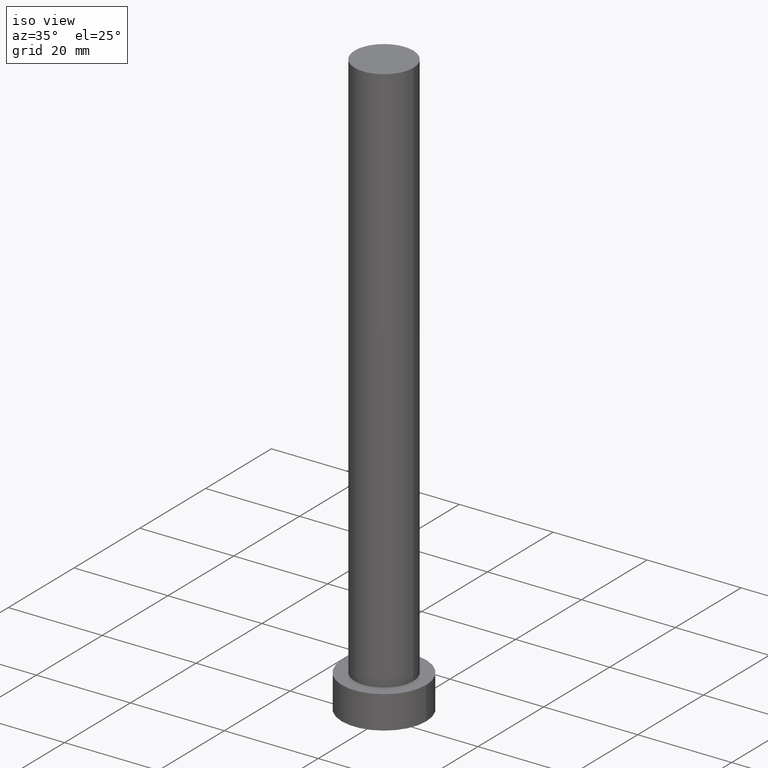
[diagram: clean part render]
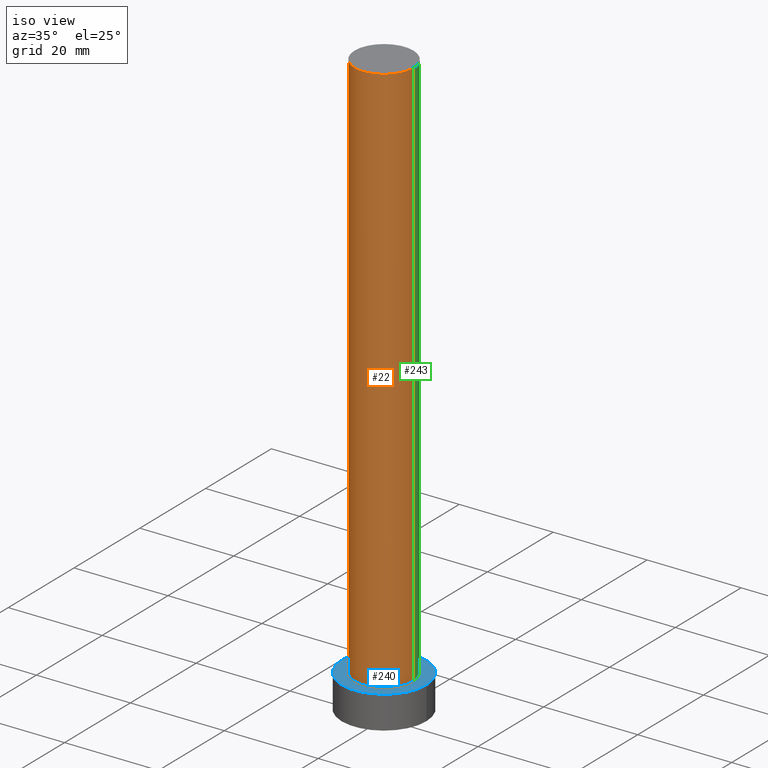
[diagram: same view with three faces highlighted in distinct colors, each labeled with its STEP entity id]
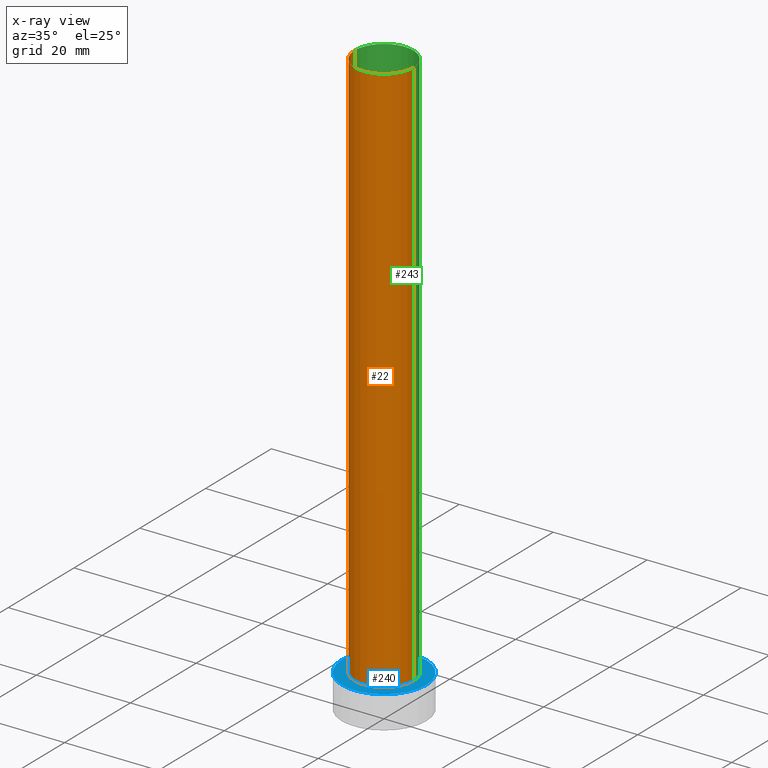
[diagram: x-ray of the same camera — body ghosted, the three highlighted faces saturated]
A machine part, iso view with three faces highlighted in distinct colors.
The next image is the same camera in x-ray (body ghosted, the three faces saturated) — at least one of them is partly hidden behind the body in this view.
Their STEP definitions:

[orange] entity #22 — the highlighted cylindrical surface (edge-blend (fillet) strip) has radius 6.25 mm, axis along (-0, -0, -1).
#5 = CIRCLE ( 'NONE', #252, 6.250000000000000000 ) ;
#6 = ORIENTED_EDGE ( 'NONE', *, *, #126, .T. ) ;
#7 = CARTESIAN_POINT ( 'NONE',  ( -6.250000000000000000, 0.000000000000000000, 7.000000000000000000 ) ) ;
#9 = DIRECTION ( 'NONE',  ( -0.000000000000000000, -0.000000000000000000, -1.000000000000000000 ) ) ;
#20 = VERTEX_POINT ( 'NONE', #7 ) ;
#21 = VERTEX_POINT ( 'NONE', #224 ) ;
#22 = ADVANCED_FACE ( 'NONE', ( #46 ), #225, .T. ) ;
#25 = DIRECTION ( 'NONE',  ( -1.000000000000000000, 0.000000000000000000, 0.000000000000000000 ) ) ;
#46 = FACE_OUTER_BOUND ( 'NONE', #101, .T. ) ;
#51 = DIRECTION ( 'NONE',  ( -0.000000000000000000, -0.000000000000000000, -1.000000000000000000 ) ) ;
#55 = DIRECTION ( 'NONE',  ( 0.000000000000000000, 0.000000000000000000, 1.000000000000000000 ) ) ;
#61 = VERTEX_POINT ( 'NONE', #206 ) ;
#71 = EDGE_CURVE ( 'NONE', #61, #21, #245, .T. ) ;
#73 = CARTESIAN_POINT ( 'NONE',  ( 0.000000000000000000, 0.000000000000000000, 7.000000000000000000 ) ) ;
#79 = CARTESIAN_POINT ( 'NONE',  ( -6.250000000000000000, 0.000000000000000000, 125.0000000000000000 ) ) ;
#80 = AXIS2_PLACEMENT_3D ( 'NONE', #73, #55, #158 ) ;
#87 = ORIENTED_EDGE ( 'NONE', *, *, #71, .F. ) ;
#95 = VECTOR ( 'NONE', #9, 1000.000000000000000 ) ;
#101 = EDGE_LOOP ( 'NONE', ( #87, #201, #254, #6 ) ) ;
#126 = EDGE_CURVE ( 'NONE', #20, #21, #137, .T. ) ;
#131 = CARTESIAN_POINT ( 'NONE',  ( 0.000000000000000000, 0.000000000000000000, 125.0000000000000000 ) ) ;
#133 = EDGE_CURVE ( 'NONE', #248, #61, #5, .T. ) ;
#137 = CIRCLE ( 'NONE', #80, 6.250000000000000000 ) ;
#152 = EDGE_CURVE ( 'NONE', #248, #20, #195, .T. ) ;
#158 = DIRECTION ( 'NONE',  ( 1.000000000000000000, 0.000000000000000000, 0.000000000000000000 ) ) ;
#170 = DIRECTION ( 'NONE',  ( 0.000000000000000000, 0.000000000000000000, 1.000000000000000000 ) ) ;
#174 = CARTESIAN_POINT ( 'NONE',  ( 0.000000000000000000, 0.000000000000000000, 125.0000000000000000 ) ) ;
#190 = DIRECTION ( 'NONE',  ( 1.000000000000000000, 0.000000000000000000, 0.000000000000000000 ) ) ;
#192 = CARTESIAN_POINT ( 'NONE',  ( 6.250000000000000000, 7.654042494670957606E-16, 125.0000000000000000 ) ) ;
#195 = LINE ( 'NONE', #79, #196 ) ;
#196 = VECTOR ( 'NONE', #51, 1000.000000000000000 ) ;
#201 = ORIENTED_EDGE ( 'NONE', *, *, #133, .F. ) ;
#206 = CARTESIAN_POINT ( 'NONE',  ( 6.250000000000000000, 7.654042494670957606E-16, 125.0000000000000000 ) ) ;
#207 = AXIS2_PLACEMENT_3D ( 'NONE', #131, #241, #25 ) ;
#224 = CARTESIAN_POINT ( 'NONE',  ( 6.250000000000000000, 7.654042494670957606E-16, 7.000000000000000000 ) ) ;
#225 = CYLINDRICAL_SURFACE ( 'NONE', #207, 6.250000000000000000 ) ;
#233 = CARTESIAN_POINT ( 'NONE',  ( -6.250000000000000000, 0.000000000000000000, 125.0000000000000000 ) ) ;
#241 = DIRECTION ( 'NONE',  ( -0.000000000000000000, -0.000000000000000000, -1.000000000000000000 ) ) ;
#245 = LINE ( 'NONE', #192, #95 ) ;
#248 = VERTEX_POINT ( 'NONE', #233 ) ;
#252 = AXIS2_PLACEMENT_3D ( 'NONE', #174, #170, #190 ) ;
#254 = ORIENTED_EDGE ( 'NONE', *, *, #152, .T. ) ;

[blue] entity #240 — the highlighted planar face has unit normal (0, 0, 1).
#7 = CARTESIAN_POINT ( 'NONE',  ( -6.250000000000000000, 0.000000000000000000, 7.000000000000000000 ) ) ;
#20 = VERTEX_POINT ( 'NONE', #7 ) ;
#21 = VERTEX_POINT ( 'NONE', #224 ) ;
#38 = EDGE_CURVE ( 'NONE', #21, #20, #70, .T. ) ;
#40 = AXIS2_PLACEMENT_3D ( 'NONE', #208, #188, #129 ) ;
#55 = DIRECTION ( 'NONE',  ( 0.000000000000000000, 0.000000000000000000, 1.000000000000000000 ) ) ;
#56 = DIRECTION ( 'NONE',  ( 1.000000000000000000, 0.000000000000000000, 0.000000000000000000 ) ) ;
#67 = VERTEX_POINT ( 'NONE', #167 ) ;
#70 = CIRCLE ( 'NONE', #40, 6.250000000000000000 ) ;
#73 = CARTESIAN_POINT ( 'NONE',  ( 0.000000000000000000, 0.000000000000000000, 7.000000000000000000 ) ) ;
#77 = FACE_BOUND ( 'NONE', #140, .T. ) ;
#80 = AXIS2_PLACEMENT_3D ( 'NONE', #73, #55, #158 ) ;
#99 = FACE_OUTER_BOUND ( 'NONE', #203, .T. ) ;
#112 = EDGE_CURVE ( 'NONE', #193, #67, #116, .T. ) ;
#113 = DIRECTION ( 'NONE',  ( 0.000000000000000000, 0.000000000000000000, 1.000000000000000000 ) ) ;
#116 = CIRCLE ( 'NONE', #156, 9.000000000000000000 ) ;
#117 = ORIENTED_EDGE ( 'NONE', *, *, #112, .T. ) ;
#118 = DIRECTION ( 'NONE',  ( 1.000000000000000000, 0.000000000000000000, -0.000000000000000000 ) ) ;
#126 = EDGE_CURVE ( 'NONE', #20, #21, #137, .T. ) ;
#129 = DIRECTION ( 'NONE',  ( 1.000000000000000000, 0.000000000000000000, 0.000000000000000000 ) ) ;
#130 = AXIS2_PLACEMENT_3D ( 'NONE', #141, #154, #227 ) ;
#137 = CIRCLE ( 'NONE', #80, 6.250000000000000000 ) ;
#138 = CARTESIAN_POINT ( 'NONE',  ( 0.000000000000000000, 0.000000000000000000, 7.000000000000000000 ) ) ;
#140 = EDGE_LOOP ( 'NONE', ( #180, #162 ) ) ;
#141 = CARTESIAN_POINT ( 'NONE',  ( 0.000000000000000000, 0.000000000000000000, 7.000000000000000000 ) ) ;
#144 = EDGE_CURVE ( 'NONE', #67, #193, #151, .T. ) ;
#151 = CIRCLE ( 'NONE', #130, 9.000000000000000000 ) ;
#154 = DIRECTION ( 'NONE',  ( 0.000000000000000000, 0.000000000000000000, 1.000000000000000000 ) ) ;
#155 = PLANE ( 'NONE',  #205 ) ;
#156 = AXIS2_PLACEMENT_3D ( 'NONE', #197, #113, #56 ) ;
#158 = DIRECTION ( 'NONE',  ( 1.000000000000000000, 0.000000000000000000, 0.000000000000000000 ) ) ;
#162 = ORIENTED_EDGE ( 'NONE', *, *, #38, .F. ) ;
#167 = CARTESIAN_POINT ( 'NONE',  ( -9.000000000000000000, 0.000000000000000000, 7.000000000000000000 ) ) ;
#180 = ORIENTED_EDGE ( 'NONE', *, *, #126, .F. ) ;
#188 = DIRECTION ( 'NONE',  ( 0.000000000000000000, 0.000000000000000000, 1.000000000000000000 ) ) ;
#193 = VERTEX_POINT ( 'NONE', #226 ) ;
#197 = CARTESIAN_POINT ( 'NONE',  ( 0.000000000000000000, 0.000000000000000000, 7.000000000000000000 ) ) ;
#203 = EDGE_LOOP ( 'NONE', ( #238, #117 ) ) ;
#205 = AXIS2_PLACEMENT_3D ( 'NONE', #138, #213, #118 ) ;
#208 = CARTESIAN_POINT ( 'NONE',  ( 0.000000000000000000, 0.000000000000000000, 7.000000000000000000 ) ) ;
#213 = DIRECTION ( 'NONE',  ( 0.000000000000000000, 0.000000000000000000, 1.000000000000000000 ) ) ;
#224 = CARTESIAN_POINT ( 'NONE',  ( 6.250000000000000000, 7.654042494670957606E-16, 7.000000000000000000 ) ) ;
#226 = CARTESIAN_POINT ( 'NONE',  ( 9.000000000000000000, 1.102182119232617714E-15, 7.000000000000000000 ) ) ;
#227 = DIRECTION ( 'NONE',  ( 1.000000000000000000, 0.000000000000000000, 0.000000000000000000 ) ) ;
#238 = ORIENTED_EDGE ( 'NONE', *, *, #144, .T. ) ;
#240 = ADVANCED_FACE ( 'NONE', ( #77, #99 ), #155, .T. ) ;

[green] entity #243 — the highlighted cylindrical surface (edge-blend (fillet) strip) has radius 6.25 mm, axis along (-0, -0, -1).
#7 = CARTESIAN_POINT ( 'NONE',  ( -6.250000000000000000, 0.000000000000000000, 7.000000000000000000 ) ) ;
#9 = DIRECTION ( 'NONE',  ( -0.000000000000000000, -0.000000000000000000, -1.000000000000000000 ) ) ;
#13 = CYLINDRICAL_SURFACE ( 'NONE', #78, 6.250000000000000000 ) ;
#20 = VERTEX_POINT ( 'NONE', #7 ) ;
#21 = VERTEX_POINT ( 'NONE', #224 ) ;
#29 = CARTESIAN_POINT ( 'NONE',  ( 0.000000000000000000, 0.000000000000000000, 125.0000000000000000 ) ) ;
#37 = ORIENTED_EDGE ( 'NONE', *, *, #230, .F. ) ;
#38 = EDGE_CURVE ( 'NONE', #21, #20, #70, .T. ) ;
#40 = AXIS2_PLACEMENT_3D ( 'NONE', #208, #188, #129 ) ;
#44 = AXIS2_PLACEMENT_3D ( 'NONE', #29, #96, #115 ) ;
#51 = DIRECTION ( 'NONE',  ( -0.000000000000000000, -0.000000000000000000, -1.000000000000000000 ) ) ;
#58 = CIRCLE ( 'NONE', #44, 6.250000000000000000 ) ;
#61 = VERTEX_POINT ( 'NONE', #206 ) ;
#70 = CIRCLE ( 'NONE', #40, 6.250000000000000000 ) ;
#71 = EDGE_CURVE ( 'NONE', #61, #21, #245, .T. ) ;
#78 = AXIS2_PLACEMENT_3D ( 'NONE', #173, #97, #247 ) ;
#79 = CARTESIAN_POINT ( 'NONE',  ( -6.250000000000000000, 0.000000000000000000, 125.0000000000000000 ) ) ;
#95 = VECTOR ( 'NONE', #9, 1000.000000000000000 ) ;
#96 = DIRECTION ( 'NONE',  ( 0.000000000000000000, 0.000000000000000000, 1.000000000000000000 ) ) ;
#97 = DIRECTION ( 'NONE',  ( -0.000000000000000000, -0.000000000000000000, -1.000000000000000000 ) ) ;
#115 = DIRECTION ( 'NONE',  ( 1.000000000000000000, 0.000000000000000000, 0.000000000000000000 ) ) ;
#124 = ORIENTED_EDGE ( 'NONE', *, *, #152, .F. ) ;
#127 = ORIENTED_EDGE ( 'NONE', *, *, #71, .T. ) ;
#129 = DIRECTION ( 'NONE',  ( 1.000000000000000000, 0.000000000000000000, 0.000000000000000000 ) ) ;
#152 = EDGE_CURVE ( 'NONE', #248, #20, #195, .T. ) ;
#173 = CARTESIAN_POINT ( 'NONE',  ( 0.000000000000000000, 0.000000000000000000, 125.0000000000000000 ) ) ;
#182 = ORIENTED_EDGE ( 'NONE', *, *, #38, .T. ) ;
#188 = DIRECTION ( 'NONE',  ( 0.000000000000000000, 0.000000000000000000, 1.000000000000000000 ) ) ;
#192 = CARTESIAN_POINT ( 'NONE',  ( 6.250000000000000000, 7.654042494670957606E-16, 125.0000000000000000 ) ) ;
#194 = FACE_OUTER_BOUND ( 'NONE', #228, .T. ) ;
#195 = LINE ( 'NONE', #79, #196 ) ;
#196 = VECTOR ( 'NONE', #51, 1000.000000000000000 ) ;
#206 = CARTESIAN_POINT ( 'NONE',  ( 6.250000000000000000, 7.654042494670957606E-16, 125.0000000000000000 ) ) ;
#208 = CARTESIAN_POINT ( 'NONE',  ( 0.000000000000000000, 0.000000000000000000, 7.000000000000000000 ) ) ;
#224 = CARTESIAN_POINT ( 'NONE',  ( 6.250000000000000000, 7.654042494670957606E-16, 7.000000000000000000 ) ) ;
#228 = EDGE_LOOP ( 'NONE', ( #37, #127, #182, #124 ) ) ;
#230 = EDGE_CURVE ( 'NONE', #61, #248, #58, .T. ) ;
#233 = CARTESIAN_POINT ( 'NONE',  ( -6.250000000000000000, 0.000000000000000000, 125.0000000000000000 ) ) ;
#243 = ADVANCED_FACE ( 'NONE', ( #194 ), #13, .T. ) ;
#245 = LINE ( 'NONE', #192, #95 ) ;
#247 = DIRECTION ( 'NONE',  ( -1.000000000000000000, 0.000000000000000000, 0.000000000000000000 ) ) ;
#248 = VERTEX_POINT ( 'NONE', #233 ) ;